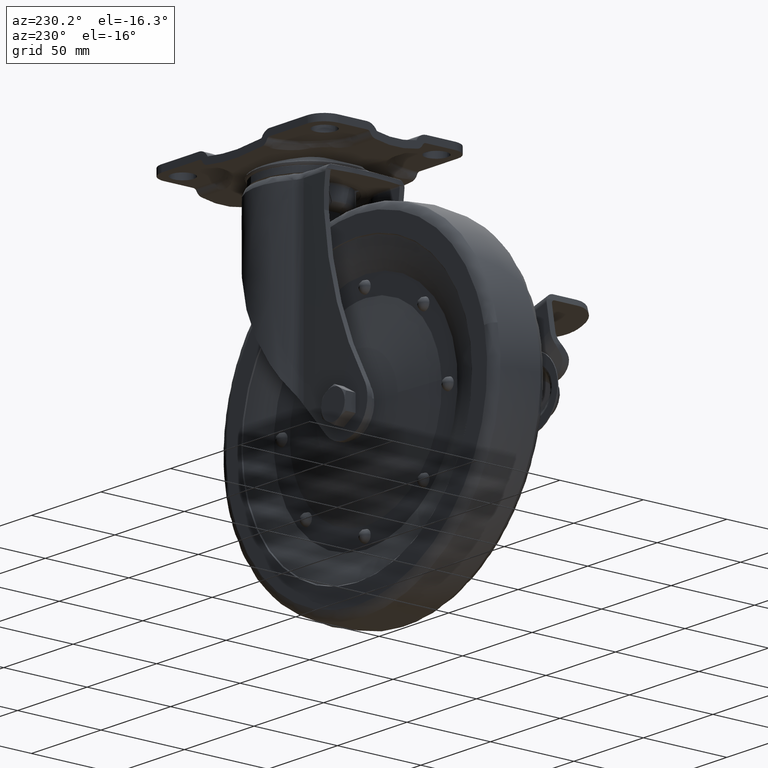
[diagram: clean part render]
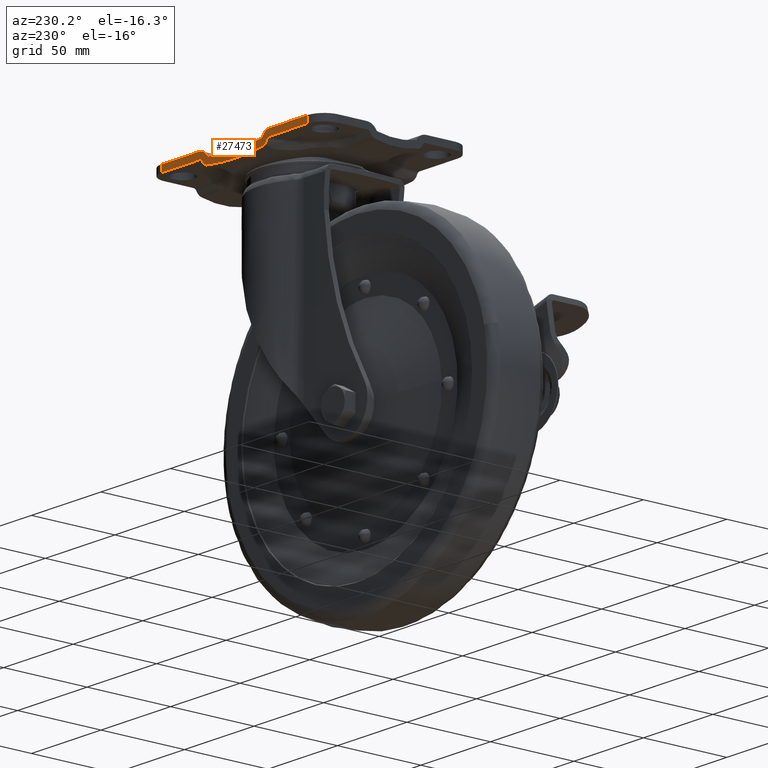
[diagram: same view with one face highlighted and labeled with its STEP entity id]
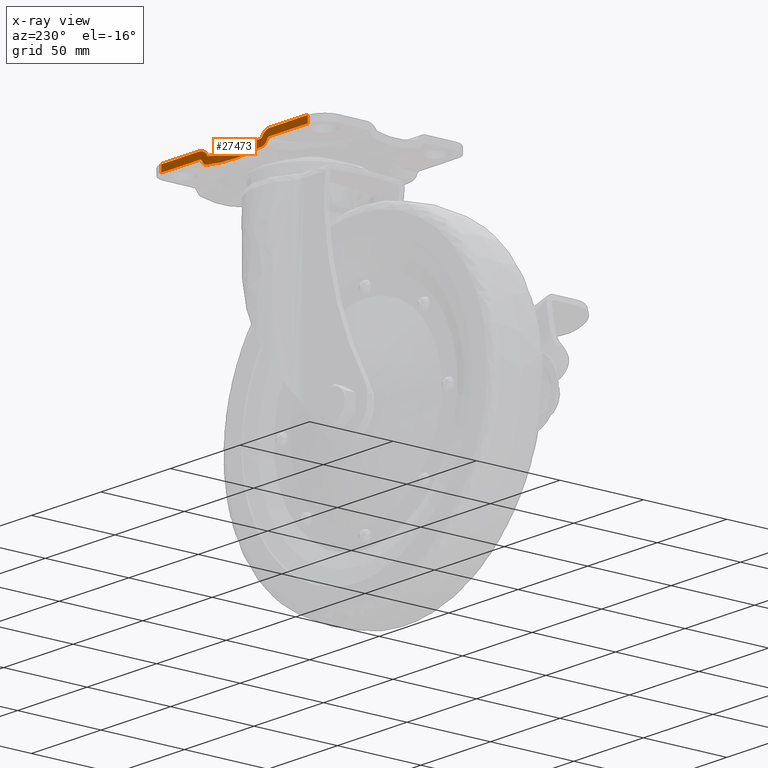
[diagram: x-ray of the same camera — body ghosted, the highlighted face saturated]
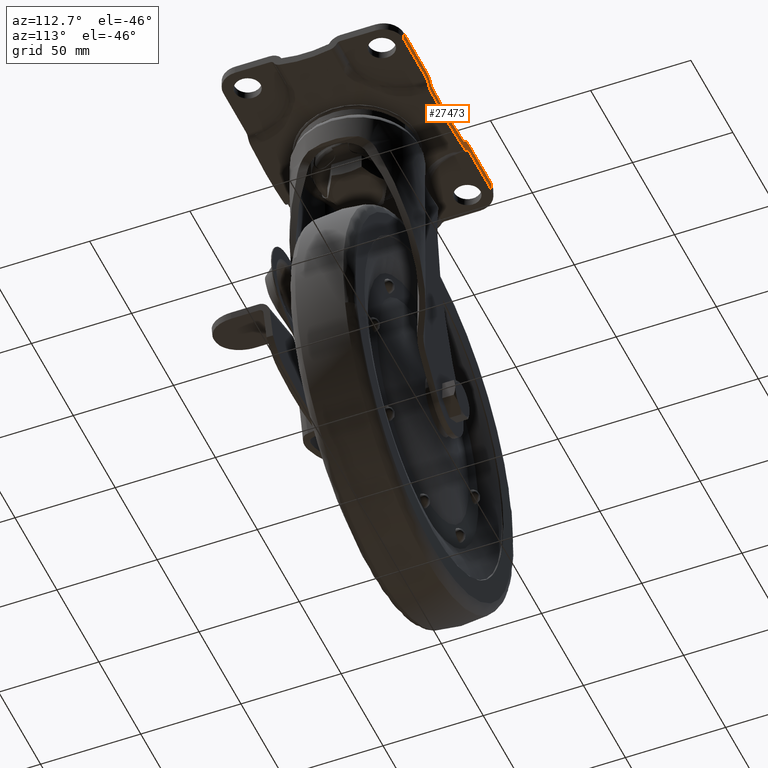
[diagram: same view with one face highlighted and labeled with its STEP entity id]
A machine part, auxiliary view. The second image highlights one B-rep face of the part: STEP entity #27473.
The next image is the same camera in x-ray: the body ghosted, the highlighted face saturated — about 0% of this face is hidden behind the body in this view.
A second angle (auxiliary view) of the same face is appended — the face is thin or edge-on in the first view.
In plain terms, the highlighted face is a freeform B-spline surface patch.
Its self-contained STEP definition (entity closure, byte-faithful):
#25343=CARTESIAN_POINT('',(-19.416919396756700,45.0,-3.387566995680250));
#25344=VERTEX_POINT('',#25343);
#25350=CARTESIAN_POINT('',(-25.362136062153350,45.0,0.270766999999808));
#25351=VERTEX_POINT('',#25350);
#25352=CARTESIAN_POINT('',(-19.416919396756700,45.0,-3.387566995680255));
#25353=CARTESIAN_POINT('',(-21.263966763624730,45.0,0.270766999999810));
#25354=CARTESIAN_POINT('',(-25.362136062153350,45.0,0.270766999999810));
#25362=(BOUNDED_CURVE()B_SPLINE_CURVE(2,(#25352,#25353,#25354),.UNSPECIFIED.,.F.,.U.)CURVE()GEOMETRIC_REPRESENTATION_ITEM()QUASI_UNIFORM_CURVE()RATIONAL_B_SPLINE_CURVE((1.0,0.851674997064385,1.0))REPRESENTATION_ITEM(''));
#25363=EDGE_CURVE('',#25344,#25351,#25362,.T.);
#25838=CARTESIAN_POINT('',(19.416919396756601,45.0,-3.387566995680295));
#25839=VERTEX_POINT('',#25838);
#25840=CARTESIAN_POINT('',(-19.416919396756711,45.0,-3.387566995680269));
#25841=CARTESIAN_POINT('',(-1.595946E-013,45.0,-6.168274203797896));
#25842=CARTESIAN_POINT('',(19.416919396756551,45.0,-3.387566995680269));
#25850=(BOUNDED_CURVE()B_SPLINE_CURVE(2,(#25840,#25841,#25842),.UNSPECIFIED.,.F.,.U.)CURVE()GEOMETRIC_REPRESENTATION_ITEM()QUASI_UNIFORM_CURVE()RATIONAL_B_SPLINE_CURVE((1.0,0.989900460552408,1.0))REPRESENTATION_ITEM(''));
#25851=EDGE_CURVE('',#25344,#25839,#25850,.T.);
#25902=CARTESIAN_POINT('',(-52.500000000000000,45.0,0.270766999999839));
#25903=VERTEX_POINT('',#25902);
#25904=CARTESIAN_POINT('',(-25.362136062153350,45.0,0.270766999999808));
#25905=CARTESIAN_POINT('',(-52.500000000000000,45.0,0.270766999999839));
#25906=QUASI_UNIFORM_CURVE('',1,(#25904,#25905),.UNSPECIFIED.,.F.,.U.);
#25907=EDGE_CURVE('',#25351,#25903,#25906,.T.);
#26223=CARTESIAN_POINT('',(25.092817931069401,45.0,-3.729233000000195));
#26224=VERTEX_POINT('',#26223);
#26230=CARTESIAN_POINT('',(52.500000000000000,45.0,-3.729233000000165));
#26231=VERTEX_POINT('',#26230);
#26232=CARTESIAN_POINT('',(25.092817931069401,45.0,-3.729233000000195));
#26233=CARTESIAN_POINT('',(52.500000000000000,45.0,-3.729233000000165));
#26234=QUASI_UNIFORM_CURVE('',1,(#26232,#26233),.UNSPECIFIED.,.F.,.U.);
#26235=EDGE_CURVE('',#26224,#26231,#26234,.T.);
#26281=CARTESIAN_POINT('',(-52.500000000000000,45.0,-3.729233000000165));
#26282=VERTEX_POINT('',#26281);
#26296=CARTESIAN_POINT('',(-25.092817931069401,45.0,-3.729233000000195));
#26297=VERTEX_POINT('',#26296);
#26298=CARTESIAN_POINT('',(-52.500000000000000,45.0,-3.729233000000165));
#26299=CARTESIAN_POINT('',(-25.092817931069401,45.0,-3.729233000000195));
#26300=QUASI_UNIFORM_CURVE('',1,(#26298,#26299),.UNSPECIFIED.,.F.,.U.);
#26301=EDGE_CURVE('',#26282,#26297,#26300,.T.);
#26349=CARTESIAN_POINT('',(-19.898586288709350,45.0,-7.359370891182491));
#26350=VERTEX_POINT('',#26349);
#26356=CARTESIAN_POINT('',(19.898586288709001,45.0,-7.359370891182530));
#26357=VERTEX_POINT('',#26356);
#26358=CARTESIAN_POINT('',(-19.898586288709350,45.0,-7.359370891182465));
#26359=CARTESIAN_POINT('',(-2.185752E-013,45.000000000000007,-10.196633307525769));
#26360=CARTESIAN_POINT('',(19.898586288708941,45.0,-7.359370891182521));
#26368=(BOUNDED_CURVE()B_SPLINE_CURVE(2,(#26358,#26359,#26360),.UNSPECIFIED.,.F.,.U.)CURVE()GEOMETRIC_REPRESENTATION_ITEM()QUASI_UNIFORM_CURVE()RATIONAL_B_SPLINE_CURVE((1.0,0.989987020598301,1.0))REPRESENTATION_ITEM(''));
#26369=EDGE_CURVE('',#26350,#26357,#26368,.T.);
#26395=CARTESIAN_POINT('',(-23.287426736143349,45.0,-4.868673511479210));
#26396=VERTEX_POINT('',#26395);
#26397=CARTESIAN_POINT('',(-23.287426736143349,45.0,-4.868673511479213));
#26398=CARTESIAN_POINT('',(-23.830553536869019,45.0,-3.729233000000190));
#26399=CARTESIAN_POINT('',(-25.092817931069401,45.0,-3.729233000000190));
#26407=(BOUNDED_CURVE()B_SPLINE_CURVE(2,(#26397,#26398,#26399),.UNSPECIFIED.,.F.,.U.)CURVE()GEOMETRIC_REPRESENTATION_ITEM()QUASI_UNIFORM_CURVE()RATIONAL_B_SPLINE_CURVE((1.0,0.845659430344299,1.0))REPRESENTATION_ITEM(''));
#26408=EDGE_CURVE('',#26396,#26297,#26407,.T.);
#26435=CARTESIAN_POINT('',(-23.287426736143360,45.0,-4.868673511479214));
#26436=CARTESIAN_POINT('',(-22.260753834164628,44.999999999999993,-7.022558561874980));
#26437=CARTESIAN_POINT('',(-19.898586288709350,45.0,-7.359370891182470));
#26445=(BOUNDED_CURVE()B_SPLINE_CURVE(2,(#26435,#26436,#26437),.UNSPECIFIED.,.F.,.U.)CURVE()GEOMETRIC_REPRESENTATION_ITEM()QUASI_UNIFORM_CURVE()RATIONAL_B_SPLINE_CURVE((1.0,0.881304273436914,1.0))REPRESENTATION_ITEM(''));
#26446=EDGE_CURVE('',#26396,#26350,#26445,.T.);
#26467=CARTESIAN_POINT('',(23.287426736143100,45.0,-4.868673511479150));
#26468=VERTEX_POINT('',#26467);
#26469=CARTESIAN_POINT('',(25.092817931069401,45.0,-3.729233000000190));
#26470=CARTESIAN_POINT('',(23.830553536868972,45.0,-3.729233000000189));
#26471=CARTESIAN_POINT('',(23.287426736143331,45.0,-4.868673511479260));
#26479=(BOUNDED_CURVE()B_SPLINE_CURVE(2,(#26469,#26470,#26471),.UNSPECIFIED.,.F.,.U.)CURVE()GEOMETRIC_REPRESENTATION_ITEM()QUASI_UNIFORM_CURVE()RATIONAL_B_SPLINE_CURVE((1.0,0.845659430344292,1.0))REPRESENTATION_ITEM(''));
#26480=EDGE_CURVE('',#26224,#26468,#26479,.T.);
#26507=CARTESIAN_POINT('',(19.898586288709001,45.0,-7.359370891182524));
#26508=CARTESIAN_POINT('',(22.260753834164376,45.0,-7.022558561875020));
#26509=CARTESIAN_POINT('',(23.287426736143068,45.0,-4.868673511479141));
#26517=(BOUNDED_CURVE()B_SPLINE_CURVE(2,(#26507,#26508,#26509),.UNSPECIFIED.,.F.,.U.)CURVE()GEOMETRIC_REPRESENTATION_ITEM()QUASI_UNIFORM_CURVE()RATIONAL_B_SPLINE_CURVE((1.0,0.881304273436906,1.0))REPRESENTATION_ITEM(''));
#26518=EDGE_CURVE('',#26357,#26468,#26517,.T.);
#27238=CARTESIAN_POINT('',(-52.500000000000000,45.0,-3.729233000000165));
#27239=CARTESIAN_POINT('',(-52.500000000000000,45.0,0.270766999999839));
#27240=QUASI_UNIFORM_CURVE('',1,(#27238,#27239),.UNSPECIFIED.,.F.,.U.);
#27241=EDGE_CURVE('',#26282,#25903,#27240,.T.);
#27409=CARTESIAN_POINT('',(52.500000000000000,45.0,0.270766999999839));
#27410=VERTEX_POINT('',#27409);
#27411=CARTESIAN_POINT('',(52.500000000000000,45.0,-3.729233000000165));
#27412=CARTESIAN_POINT('',(52.500000000000000,45.0,0.270766999999839));
#27413=QUASI_UNIFORM_CURVE('',1,(#27411,#27412),.UNSPECIFIED.,.F.,.U.);
#27414=EDGE_CURVE('',#26231,#27410,#27413,.T.);
#27434=CARTESIAN_POINT('',(-57.744749796489629,45.0,-9.222493450925782));
#27435=CARTESIAN_POINT('',(-57.744749796489629,45.0,0.722396693440848));
#27436=CARTESIAN_POINT('',(57.744752612809087,45.0,-9.222493450925782));
#27437=CARTESIAN_POINT('',(57.744752612809087,45.0,0.722396693440848));
#27438=B_SPLINE_SURFACE_WITH_KNOTS('',1,1,((#27434,#27436),(#27435,#27437)),.UNSPECIFIED.,.F.,.F.,.U.,(2,2),(2,2),(0.0,9.944890144366630),(0.0,115.489502409298690),.UNSPECIFIED.);
#27439=CARTESIAN_POINT('',(25.362136062153350,45.0,0.270766999999808));
#27440=VERTEX_POINT('',#27439);
#27441=CARTESIAN_POINT('',(52.500000000000000,45.0,0.270766999999839));
#27442=CARTESIAN_POINT('',(25.362136062153350,45.0,0.270766999999808));
#27443=QUASI_UNIFORM_CURVE('',1,(#27441,#27442),.UNSPECIFIED.,.F.,.U.);
#27444=EDGE_CURVE('',#27410,#27440,#27443,.T.);
#27445=ORIENTED_EDGE('',*,*,#27444,.F.);
#27446=ORIENTED_EDGE('',*,*,#27414,.F.);
#27447=ORIENTED_EDGE('',*,*,#26235,.F.);
#27448=ORIENTED_EDGE('',*,*,#26480,.T.);
#27449=ORIENTED_EDGE('',*,*,#26518,.F.);
#27450=ORIENTED_EDGE('',*,*,#26369,.F.);
#27451=ORIENTED_EDGE('',*,*,#26446,.F.);
#27452=ORIENTED_EDGE('',*,*,#26408,.T.);
#27453=ORIENTED_EDGE('',*,*,#26301,.F.);
#27454=ORIENTED_EDGE('',*,*,#27241,.T.);
#27455=ORIENTED_EDGE('',*,*,#25907,.F.);
#27456=ORIENTED_EDGE('',*,*,#25363,.F.);
#27457=ORIENTED_EDGE('',*,*,#25851,.T.);
#27458=CARTESIAN_POINT('',(25.362136062153350,45.0,0.270766999999810));
#27459=CARTESIAN_POINT('',(21.263966763624669,45.0,0.270766999999809));
#27460=CARTESIAN_POINT('',(19.416919396756668,45.0,-3.387566995680333));
#27468=(BOUNDED_CURVE()B_SPLINE_CURVE(2,(#27458,#27459,#27460),.UNSPECIFIED.,.F.,.U.)CURVE()GEOMETRIC_REPRESENTATION_ITEM()QUASI_UNIFORM_CURVE()RATIONAL_B_SPLINE_CURVE((1.0,0.851674997064381,1.0))REPRESENTATION_ITEM(''));
#27469=EDGE_CURVE('',#27440,#25839,#27468,.T.);
#27470=ORIENTED_EDGE('',*,*,#27469,.F.);
#27471=EDGE_LOOP('',(#27445,#27446,#27447,#27448,#27449,#27450,#27451,#27452,#27453,#27454,#27455,#27456,#27457,#27470));
#27472=FACE_OUTER_BOUND('',#27471,.T.);
#27473=ADVANCED_FACE('',(#27472),#27438,.T.);